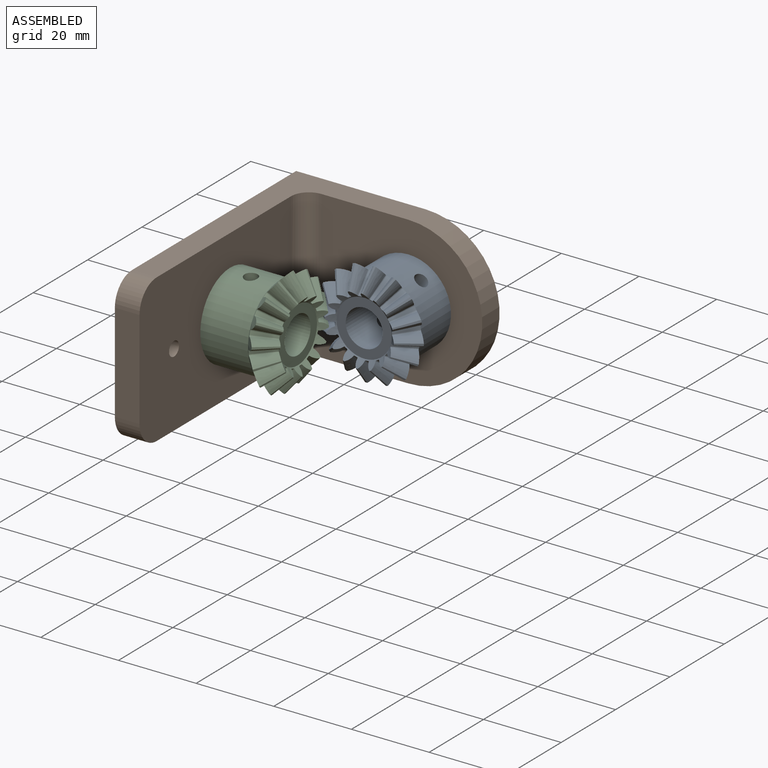
[diagram: assembled view]
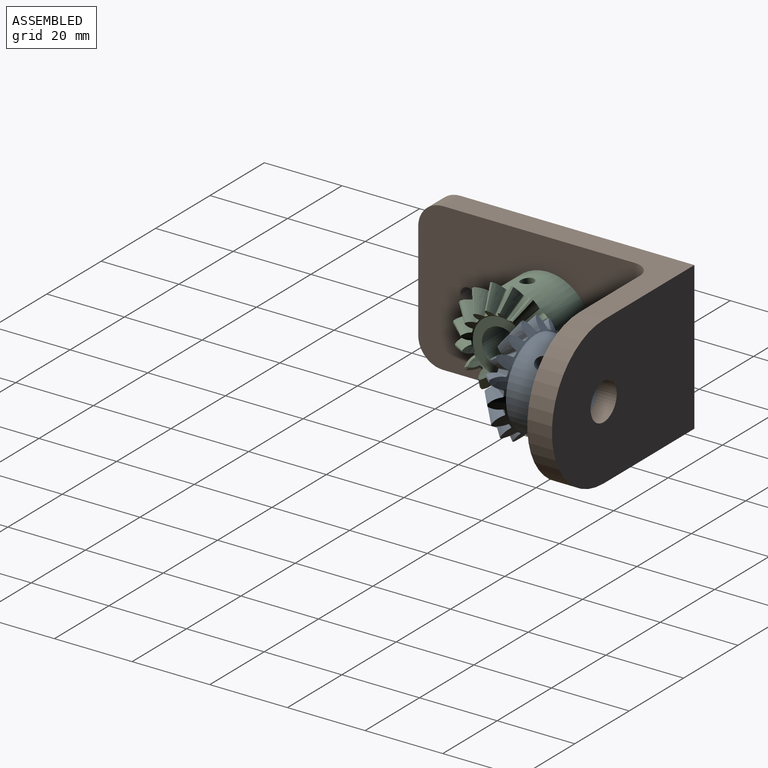
[diagram: assembled view, second angle]
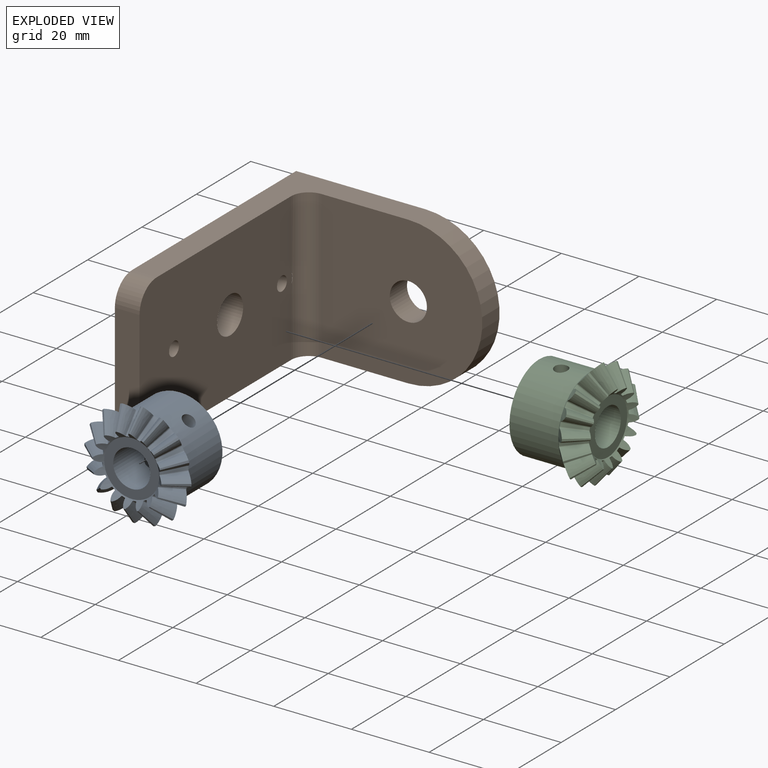
[diagram: exploded view]
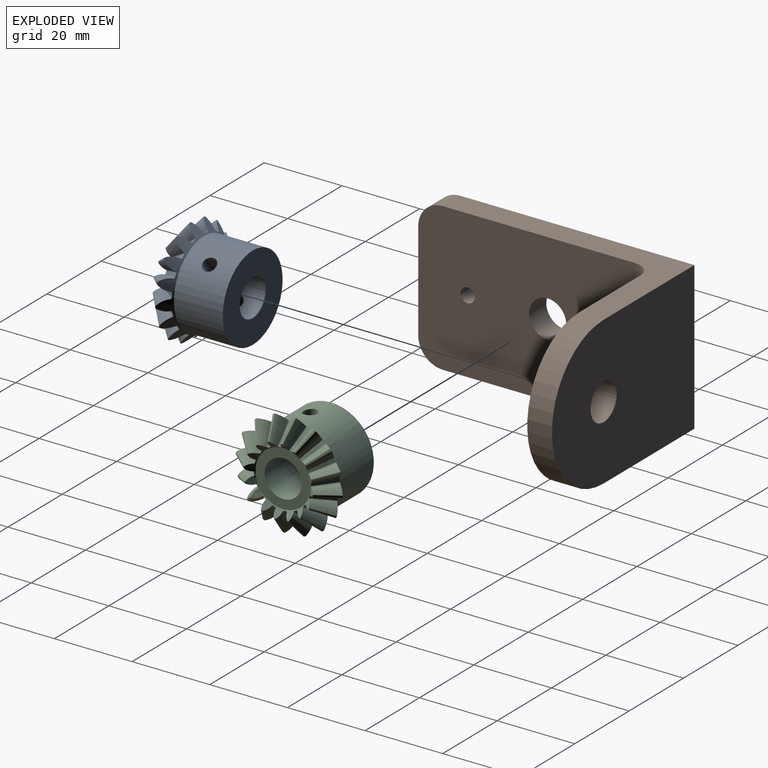
[diagram: exploded view, second angle]
ASSEMBLY  parts=3 mates=2
PART A: 104 faces, bbox 27x27.6x27.6 mm
  f0: plane 14.21x14.21mm, normal (1,0,0), area 87.3mm2, adj f17,f101
  f1: plane 21.98x21.98mm, normal (-1,0,0), area 308.1mm2, adj f100,f101
  f2: cone r=8.94mm half-angle=50.1deg, axis (-1,0,0), area 3mm2, adj f17,f19,f91,f95
  f3: cone r=8.94mm half-angle=50.1deg, axis (-1,0,0), area 3mm2, adj f17,f19,f86,f90
  f4: cone r=8.94mm half-angle=50.1deg, axis (-1,0,0), area 3mm2, adj f17,f19,f81,f85
  f5: cone r=8.94mm half-angle=50.1deg, axis (-1,0,0), area 3mm2, adj f17,f19,f76,f80
  f6: cone r=8.94mm half-angle=50.1deg, axis (-1,0,0), area 3mm2, adj f17,f19,f71,f75
  f7: cone r=8.94mm half-angle=50.1deg, axis (-1,0,0), area 3mm2, adj f17,f19,f66,f70
  f8: cone r=8.94mm half-angle=50.1deg, axis (-1,0,0), area 3mm2, adj f17,f19,f61,f65
  f9: cone r=8.94mm half-angle=50.1deg, axis (-1,0,0), area 3mm2, adj f17,f19,f56,f60
  f10: cone r=8.94mm half-angle=50.1deg, axis (-1,0,0), area 3mm2, adj f17,f19,f51,f55
  f11: cone r=8.94mm half-angle=50.1deg, axis (-1,0,0), area 3mm2, adj f17,f19,f46,f50
  f12: cone r=8.94mm half-angle=50.1deg, axis (-1,0,0), area 3mm2, adj f17,f19,f41,f45
  f13: cone r=8.94mm half-angle=50.1deg, axis (-1,0,0), area 3mm2, adj f17,f19,f36,f40
  f14: cone r=8.94mm half-angle=50.1deg, axis (-1,0,0), area 3mm2, adj f17,f19,f31,f35
  f15: cone r=8.94mm half-angle=50.1deg, axis (-1,0,0), area 3mm2, adj f17,f19,f26,f30
  f16: cone r=8.94mm half-angle=50.1deg, axis (-1,0,0), area 3mm2, adj f17,f19,f21,f25
  f17: cone r=7.1mm half-angle=45deg, axis (1,0,0), area 67mm2, adj f0,f2,f3,f4,f5,f6,f7,f8
  f18: cone r=8.94mm half-angle=50.1deg, axis (-1,0,0), area 3mm2, adj f17,f19,f20,f96
  f19: cone r=13.82mm half-angle=45deg, axis (1,0,0), area 161.1mm2, adj f2,f3,f4,f5,f6,f7,f8,f9
  f20: bspline ~6.63x6.59mm, area 18.5mm2, adj f17,f18,f19,f22
  f21: bspline ~6.63x6.59mm, area 18.5mm2, adj f16,f17,f19,f23
  f22: bspline ~14.08x11.55mm, area 2.7mm2, adj f17,f19,f20,f24
  f23: bspline ~14.08x11.55mm, area 2.7mm2, adj f17,f19,f21,f24
  f24: bspline ~5.06x4.08mm, area 4.8mm2, adj f17,f19,f22,f23
  f25: bspline ~6.86x6.59mm, area 18.5mm2, adj f16,f17,f19,f27
  f26: bspline ~6.59x5.39mm, area 18.5mm2, adj f15,f17,f19,f28
  f27: bspline ~5.45x4.35mm, area 2.7mm2, adj f17,f19,f25,f29
  f28: bspline ~5.45x4.04mm, area 2.7mm2, adj f17,f19,f26,f29
  f29: bspline ~14.07x10.65mm, area 4.8mm2, adj f17,f19,f27,f28
  f30: bspline ~6.59x6.04mm, area 18.5mm2, adj f15,f17,f19,f32
  f31: bspline ~6.59x6.04mm, area 18.5mm2, adj f14,f17,f19,f33
  f32: bspline ~14.08x8.74mm, area 2.7mm2, adj f17,f19,f30,f34
  f33: bspline ~14.08x8.74mm, area 2.7mm2, adj f17,f19,f31,f34
  f34: bspline ~5.06x3.41mm, area 4.8mm2, adj f17,f19,f32,f33
  f35: bspline ~6.59x5.39mm, area 18.5mm2, adj f14,f17,f19,f37
  f36: bspline ~6.86x6.59mm, area 18.5mm2, adj f13,f17,f19,f38
  f37: bspline ~5.45x4.04mm, area 2.7mm2, adj f17,f19,f35,f39
  f38: bspline ~5.45x4.35mm, area 2.7mm2, adj f17,f19,f36,f39
  f39: bspline ~14.07x10.65mm, area 4.8mm2, adj f17,f19,f37,f38
  f40: bspline ~6.63x6.59mm, area 18.5mm2, adj f13,f17,f19,f42
  f41: bspline ~6.63x6.59mm, area 18.5mm2, adj f12,f17,f19,f43
  f42: bspline ~14.08x11.55mm, area 2.7mm2, adj f17,f19,f40,f44
  f43: bspline ~14.08x11.55mm, area 2.7mm2, adj f17,f19,f41,f44
  f44: bspline ~5.06x4.08mm, area 4.8mm2, adj f17,f19,f42,f43
  f45: bspline ~6.86x6.59mm, area 18.5mm2, adj f12,f17,f19,f47
  f46: bspline ~6.59x5.39mm, area 18.5mm2, adj f11,f17,f19,f48
  f47: bspline ~5.45x4.35mm, area 2.7mm2, adj f17,f19,f45,f49
  f48: bspline ~5.45x4.04mm, area 2.7mm2, adj f17,f19,f46,f49
  f49: bspline ~14.07x10.65mm, area 4.8mm2, adj f17,f19,f47,f48
  f50: bspline ~6.59x6.04mm, area 18.5mm2, adj f11,f17,f19,f52
  f51: bspline ~6.59x6.04mm, area 18.5mm2, adj f10,f17,f19,f53
  f52: bspline ~14.08x8.74mm, area 2.7mm2, adj f17,f19,f50,f54
  f53: bspline ~14.08x8.74mm, area 2.7mm2, adj f17,f19,f51,f54
  f54: bspline ~5.06x3.41mm, area 4.8mm2, adj f17,f19,f52,f53
  f55: bspline ~6.59x5.39mm, area 18.5mm2, adj f10,f17,f19,f57
  f56: bspline ~6.86x6.59mm, area 18.5mm2, adj f9,f17,f19,f58
  f57: bspline ~5.45x4.04mm, area 2.7mm2, adj f17,f19,f55,f59
  f58: bspline ~5.45x4.35mm, area 2.7mm2, adj f17,f19,f56,f59
  f59: bspline ~14.07x10.65mm, area 4.8mm2, adj f17,f19,f57,f58
  f60: bspline ~6.63x6.59mm, area 18.5mm2, adj f9,f17,f19,f62
  f61: bspline ~6.63x6.59mm, area 18.5mm2, adj f8,f17,f19,f63
  f62: bspline ~14.08x11.55mm, area 2.7mm2, adj f17,f19,f60,f64
  f63: bspline ~14.08x11.55mm, area 2.7mm2, adj f17,f19,f61,f64
  f64: bspline ~5.06x4.08mm, area 4.8mm2, adj f17,f19,f62,f63
  f65: bspline ~6.86x6.59mm, area 18.5mm2, adj f8,f17,f19,f67
  f66: bspline ~6.59x5.39mm, area 18.5mm2, adj f7,f17,f19,f68
  f67: bspline ~5.45x4.35mm, area 2.7mm2, adj f17,f19,f65,f69
  f68: bspline ~5.45x4.04mm, area 2.7mm2, adj f17,f19,f66,f69
  f69: bspline ~14.07x10.65mm, area 4.8mm2, adj f17,f19,f67,f68
  f70: bspline ~6.59x6.04mm, area 18.5mm2, adj f7,f17,f19,f72
  f71: bspline ~6.59x6.04mm, area 18.5mm2, adj f6,f17,f19,f73
  f72: bspline ~14.08x8.74mm, area 2.7mm2, adj f17,f19,f70,f74
  f73: bspline ~14.08x8.74mm, area 2.7mm2, adj f17,f19,f71,f74
  f74: bspline ~5.06x3.41mm, area 4.8mm2, adj f17,f19,f72,f73
  f75: bspline ~6.59x5.39mm, area 18.5mm2, adj f6,f17,f19,f77
  f76: bspline ~6.86x6.59mm, area 18.5mm2, adj f5,f17,f19,f78
  f77: bspline ~5.45x4.04mm, area 2.7mm2, adj f17,f19,f75,f79
  f78: bspline ~5.45x4.35mm, area 2.7mm2, adj f17,f19,f76,f79
  f79: bspline ~14.07x10.65mm, area 4.8mm2, adj f17,f19,f77,f78
  f80: bspline ~6.63x6.59mm, area 18.5mm2, adj f5,f17,f19,f82
  f81: bspline ~6.63x6.59mm, area 18.5mm2, adj f4,f17,f19,f83
  f82: bspline ~14.08x11.55mm, area 2.7mm2, adj f17,f19,f80,f84
  f83: bspline ~14.08x11.55mm, area 2.7mm2, adj f17,f19,f81,f84
  f84: bspline ~5.06x4.08mm, area 4.8mm2, adj f17,f19,f82,f83
  f85: bspline ~6.86x6.59mm, area 18.5mm2, adj f4,f17,f19,f87
  f86: bspline ~6.59x5.39mm, area 18.5mm2, adj f3,f17,f19,f88
  f87: bspline ~5.45x4.35mm, area 2.7mm2, adj f17,f19,f85,f89
  f88: bspline ~5.45x4.04mm, area 2.7mm2, adj f17,f19,f86,f89
  f89: bspline ~14.07x10.65mm, area 4.8mm2, adj f17,f19,f87,f88
  f90: bspline ~6.59x6.04mm, area 18.5mm2, adj f3,f17,f19,f92
  f91: bspline ~6.59x6.04mm, area 18.5mm2, adj f2,f17,f19,f93
  f92: bspline ~14.08x8.74mm, area 2.7mm2, adj f17,f19,f90,f94
  f93: bspline ~14.08x8.74mm, area 2.7mm2, adj f17,f19,f91,f94
  f94: bspline ~5.06x3.41mm, area 4.8mm2, adj f17,f19,f92,f93
  f95: bspline ~6.59x5.39mm, area 18.5mm2, adj f2,f17,f19,f97
  f96: bspline ~6.86x6.59mm, area 18.5mm2, adj f17,f18,f19,f98
  f97: bspline ~5.45x4.04mm, area 2.7mm2, adj f17,f19,f95,f99
  f98: bspline ~5.45x4.35mm, area 2.7mm2, adj f17,f19,f96,f99
  f99: bspline ~14.07x10.65mm, area 4.8mm2, adj f17,f19,f97,f98
  f100: cylinder r=10.99mm len=21.98mm, axis (1,0,0), area 849.5mm2, adj f1,f19,f102,f103
  f101: cylinder r=4.76mm len=17.67mm, axis (-1,0,0), area 509.7mm2, adj f0,f1,f102,f103
  f102: cylinder r=1.73mm len=6.55mm, axis (0,1,0), area 68.6mm2, adj f100,f101
  f103: cylinder r=1.73mm len=6.55mm, axis (0,1,0), area 68.6mm2, adj f100,f101
PART B: 16 faces, bbox 52.4x66.7x38.1 mm
  f0: cylinder r=4.57mm len=38.1mm, axis (0,0,1), area 272.5mm2, adj f4,f5,f6,f7,f15
  f1: plane 52.39x38.1mm, normal (0,1,0), area 1768.2mm2, adj f2,f6,f7,f8,f14
  f2: plane 66.68x38.1mm, normal (-1,0,0), area 2430mm2, adj f1,f3,f6,f7,f9,f10,f11,f12
  f3: plane 25.4x6.35mm, normal (0,-1,0), area 161.3mm2, adj f2,f4,f10,f11
  f4: plane 56.2x38.1mm, normal (1,0,0), area 2014.9mm2, adj f0,f3,f6,f7,f9,f10,f11,f12
  f5: plane 41.47x38.1mm, normal (0,-1,0), area 1352.1mm2, adj f0,f6,f7,f8,f14
  f6: plane 60.33x33.34mm, normal (0,0,1), area 558.9mm2, adj f0,f1,f2,f4,f5,f11,f14
  f7: plane 60.33x33.34mm, normal (0,0,-1), area 558.9mm2, adj f0,f1,f2,f4,f5,f10,f14
  f8: cylinder r=4.79mm len=9.58mm, axis (0,-1,0), area 191mm2, adj f1,f5
  f9: cylinder r=4.79mm len=9.58mm, axis (1,0,0), area 191mm2, adj f2,f4
  f10: cylinder r=6.35mm len=6.35mm, axis (1,0,0), area 63.3mm2, adj f2,f3,f4,f7
  f11: cylinder r=6.35mm len=6.35mm, axis (-1,0,0), area 63.3mm2, adj f2,f3,f4,f6
  f12: cylinder r=1.83mm len=6.35mm, axis (1,0,0), area 73mm2, adj f2,f4
  f13: cylinder r=1.83mm len=6.35mm, axis (1,0,0), area 73mm2, adj f2,f4
  f14: cylinder r=19.05mm len=38.1mm, axis (0,1,0), area 380mm2, adj f1,f5,f6,f7
  f15: cylinder r=3.81mm len=3.57mm, axis (-1,0,0), area 0mm2, adj f0,f4
PART C: same geometry as A
PLACE A rot(axis=(-0.67,0.67,-0.32),144deg) t=(12.52,-5.28,-27.62)mm
PLACE B t=(12.52,5.85,-27.62)mm fixed
PLACE C rot(axis=(1,0,0),95.2deg) t=(-2.17,-21.13,-27.62)mm
MATE cylindrical A.f2 <-> B.f14  axis (0,1,0) through (12.52,7.3,-27.62)mm
MATE cylindrical B.f9 <-> C.f2  axis (1,0,0) through (-14.47,-21.13,-27.62)mm
